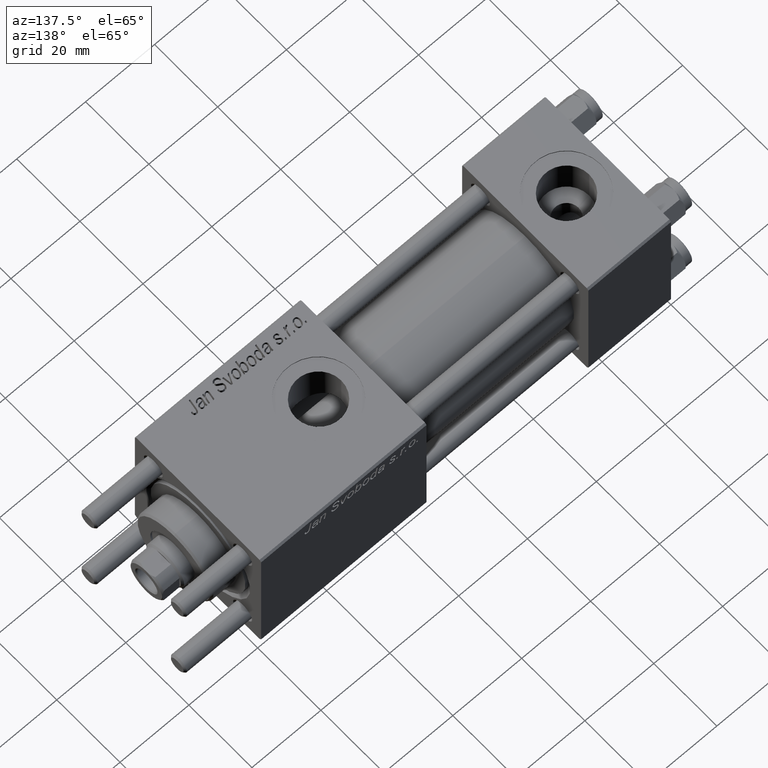
[diagram: clean part render]
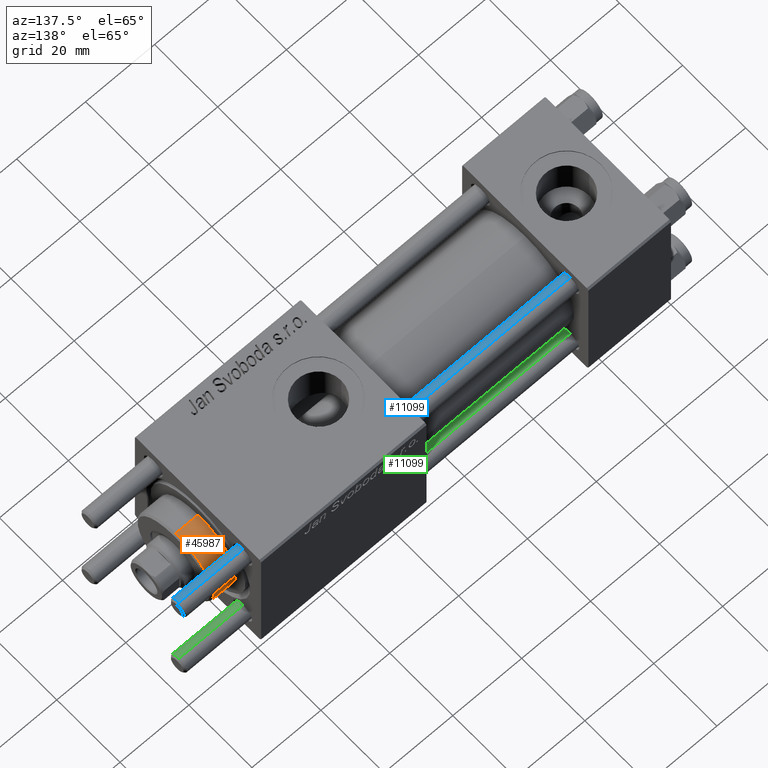
[diagram: same view with three faces highlighted in distinct colors, each labeled with its STEP entity id]
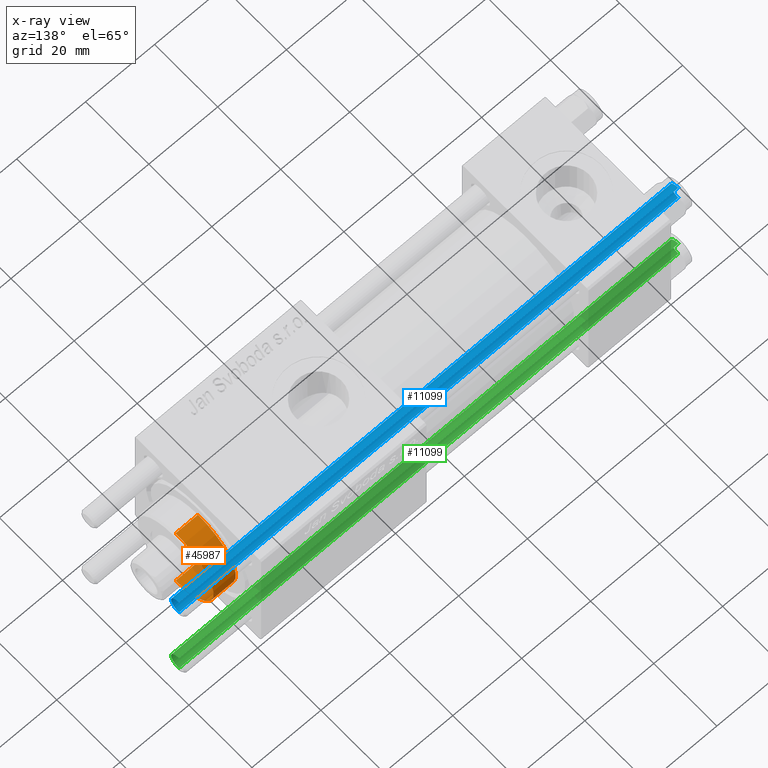
[diagram: x-ray of the same camera — body ghosted, the three highlighted faces saturated]
A machine part, auxiliary view with three faces highlighted in distinct colors.
The next image is the same camera in x-ray (body ghosted, the three faces saturated) — at least one of them is partly hidden behind the body in this view.
Their STEP definitions:

[orange] entity #45987 — the highlighted cylindrical surface (partial cylindrical patch) has radius 12 mm, axis along (-1, -0, 0).
#172 = AXIS2_PLACEMENT_3D ( 'NONE', #12920, #44151, #26120 ) ;
#841 = AXIS2_PLACEMENT_3D ( 'NONE', #52171, #43544, #12320 ) ;
#5217 = CARTESIAN_POINT ( 'NONE',  ( -12.00000000000000178, 0.000000000000000000, 35.70000000000000284 ) ) ;
#6647 = DIRECTION ( 'NONE',  ( 0.000000000000000000, 0.000000000000000000, 1.000000000000000000 ) ) ;
#7401 = VECTOR ( 'NONE', #49105, 1000.000000000000000 ) ;
#7747 = CARTESIAN_POINT ( 'NONE',  ( 12.00000000000000178, 1.469576158976824144E-15, 35.19999999999999574 ) ) ;
#8285 = CYLINDRICAL_SURFACE ( 'NONE', #841, 12.00000000000000178 ) ;
#8944 = VERTEX_POINT ( 'NONE', #31532 ) ;
#11690 = CARTESIAN_POINT ( 'NONE',  ( 12.00000000000000178, 1.469576158976824144E-15, 35.70000000000000284 ) ) ;
#11798 = EDGE_CURVE ( 'NONE', #8944, #29513, #23094, .T. ) ;
#12320 = DIRECTION ( 'NONE',  ( -1.000000000000000000, 0.000000000000000000, 0.000000000000000000 ) ) ;
#12686 = VERTEX_POINT ( 'NONE', #47923 ) ;
#12920 = CARTESIAN_POINT ( 'NONE',  ( 0.000000000000000000, 0.000000000000000000, 35.19999999999999574 ) ) ;
#13403 = EDGE_LOOP ( 'NONE', ( #41118, #41967, #32680, #27505 ) ) ;
#21489 = FACE_OUTER_BOUND ( 'NONE', #13403, .T. ) ;
#23094 = CIRCLE ( 'NONE', #172, 12.00000000000000178 ) ;
#26120 = DIRECTION ( 'NONE',  ( 1.000000000000000000, 0.000000000000000000, 0.000000000000000000 ) ) ;
#27445 = CIRCLE ( 'NONE', #46678, 12.00000000000000178 ) ;
#27505 = ORIENTED_EDGE ( 'NONE', *, *, #50852, .F. ) ;
#28922 = LINE ( 'NONE', #11690, #47357 ) ;
#29209 = DIRECTION ( 'NONE',  ( -0.000000000000000000, -0.000000000000000000, -1.000000000000000000 ) ) ;
#29329 = DIRECTION ( 'NONE',  ( 1.000000000000000000, 0.000000000000000000, 0.000000000000000000 ) ) ;
#29513 = VERTEX_POINT ( 'NONE', #7747 ) ;
#31532 = CARTESIAN_POINT ( 'NONE',  ( -12.00000000000000178, 0.000000000000000000, 35.19999999999999574 ) ) ;
#32342 = EDGE_CURVE ( 'NONE', #29513, #12686, #28922, .T. ) ;
#32680 = ORIENTED_EDGE ( 'NONE', *, *, #46447, .T. ) ;
#34200 = CARTESIAN_POINT ( 'NONE',  ( 0.000000000000000000, 0.000000000000000000, 28.69999999999999929 ) ) ;
#40119 = VERTEX_POINT ( 'NONE', #48961 ) ;
#41118 = ORIENTED_EDGE ( 'NONE', *, *, #11798, .T. ) ;
#41967 = ORIENTED_EDGE ( 'NONE', *, *, #32342, .T. ) ;
#43544 = DIRECTION ( 'NONE',  ( -0.000000000000000000, -0.000000000000000000, -1.000000000000000000 ) ) ;
#44151 = DIRECTION ( 'NONE',  ( 0.000000000000000000, 0.000000000000000000, -1.000000000000000000 ) ) ;
#45987 = ADVANCED_FACE ( 'NONE', ( #21489 ), #8285, .T. ) ;
#46447 = EDGE_CURVE ( 'NONE', #12686, #40119, #27445, .T. ) ;
#46678 = AXIS2_PLACEMENT_3D ( 'NONE', #34200, #6647, #29329 ) ;
#47357 = VECTOR ( 'NONE', #29209, 1000.000000000000000 ) ;
#47923 = CARTESIAN_POINT ( 'NONE',  ( 12.00000000000000178, 1.469576158976824144E-15, 28.69999999999999929 ) ) ;
#48541 = LINE ( 'NONE', #5217, #7401 ) ;
#48961 = CARTESIAN_POINT ( 'NONE',  ( -12.00000000000000178, 0.000000000000000000, 28.69999999999999929 ) ) ;
#49105 = DIRECTION ( 'NONE',  ( -0.000000000000000000, -0.000000000000000000, -1.000000000000000000 ) ) ;
#50852 = EDGE_CURVE ( 'NONE', #8944, #40119, #48541, .T. ) ;
#52171 = CARTESIAN_POINT ( 'NONE',  ( 0.000000000000000000, 0.000000000000000000, 35.70000000000000284 ) ) ;

[blue] entity #11099 — the highlighted cylindrical surface (edge-blend (fillet) strip) has radius 2.5 mm, axis along (1, -0, -0).
#1461 = EDGE_LOOP ( 'NONE', ( #35392, #48515, #48185, #45207 ) ) ;
#1906 = VECTOR ( 'NONE', #47004, 1000.000000000000000 ) ;
#3078 = LINE ( 'NONE', #20594, #54666 ) ;
#3536 = CARTESIAN_POINT ( 'NONE',  ( 2.500000000000000000, 3.061616997868383141E-16, 0.5000000000000559552 ) ) ;
#4812 = AXIS2_PLACEMENT_3D ( 'NONE', #50503, #55370, #29286 ) ;
#7393 = CIRCLE ( 'NONE', #41246, 2.500000000000000000 ) ;
#7404 = CARTESIAN_POINT ( 'NONE',  ( 2.500000000000000000, 3.061616997868383141E-16, 146.0000000000000000 ) ) ;
#8252 = FACE_OUTER_BOUND ( 'NONE', #1461, .T. ) ;
#9406 = CIRCLE ( 'NONE', #4812, 2.500000000000000000 ) ;
#9783 = DIRECTION ( 'NONE',  ( -0.000000000000000000, -0.000000000000000000, -1.000000000000000000 ) ) ;
#11099 = ADVANCED_FACE ( 'NONE', ( #8252 ), #25769, .T. ) ;
#17051 = EDGE_CURVE ( 'NONE', #43855, #41806, #9406, .T. ) ;
#17411 = DIRECTION ( 'NONE',  ( -1.000000000000000000, 0.000000000000000000, 0.000000000000000000 ) ) ;
#20594 = CARTESIAN_POINT ( 'NONE',  ( -2.500000000000000000, 0.000000000000000000, 146.0000000000000000 ) ) ;
#21490 = CARTESIAN_POINT ( 'NONE',  ( 2.500000000000000000, 3.061616997868383141E-16, 145.5000000000000284 ) ) ;
#24670 = DIRECTION ( 'NONE',  ( 1.000000000000000000, 0.000000000000000000, 0.000000000000000000 ) ) ;
#25769 = CYLINDRICAL_SURFACE ( 'NONE', #43273, 2.500000000000000000 ) ;
#26314 = DIRECTION ( 'NONE',  ( -0.000000000000000000, -0.000000000000000000, -1.000000000000000000 ) ) ;
#29272 = CARTESIAN_POINT ( 'NONE',  ( 0.000000000000000000, 0.000000000000000000, 0.5000000000000559552 ) ) ;
#29286 = DIRECTION ( 'NONE',  ( 1.000000000000000000, 0.000000000000000000, 0.000000000000000000 ) ) ;
#32365 = EDGE_CURVE ( 'NONE', #41806, #54669, #3078, .T. ) ;
#35392 = ORIENTED_EDGE ( 'NONE', *, *, #50537, .F. ) ;
#36059 = VERTEX_POINT ( 'NONE', #3536 ) ;
#37864 = CARTESIAN_POINT ( 'NONE',  ( -2.500000000000000000, 0.000000000000000000, 145.5000000000000284 ) ) ;
#41246 = AXIS2_PLACEMENT_3D ( 'NONE', #29272, #55645, #24670 ) ;
#41806 = VERTEX_POINT ( 'NONE', #37864 ) ;
#42965 = LINE ( 'NONE', #7404, #1906 ) ;
#43273 = AXIS2_PLACEMENT_3D ( 'NONE', #51864, #26314, #17411 ) ;
#43855 = VERTEX_POINT ( 'NONE', #21490 ) ;
#45207 = ORIENTED_EDGE ( 'NONE', *, *, #53802, .T. ) ;
#47004 = DIRECTION ( 'NONE',  ( -0.000000000000000000, -0.000000000000000000, -1.000000000000000000 ) ) ;
#47707 = CARTESIAN_POINT ( 'NONE',  ( -2.500000000000000000, 0.000000000000000000, 0.5000000000000559552 ) ) ;
#48185 = ORIENTED_EDGE ( 'NONE', *, *, #32365, .T. ) ;
#48515 = ORIENTED_EDGE ( 'NONE', *, *, #17051, .T. ) ;
#50503 = CARTESIAN_POINT ( 'NONE',  ( 0.000000000000000000, 0.000000000000000000, 145.5000000000000284 ) ) ;
#50537 = EDGE_CURVE ( 'NONE', #43855, #36059, #42965, .T. ) ;
#51864 = CARTESIAN_POINT ( 'NONE',  ( 0.000000000000000000, 0.000000000000000000, 146.0000000000000000 ) ) ;
#53802 = EDGE_CURVE ( 'NONE', #54669, #36059, #7393, .T. ) ;
#54666 = VECTOR ( 'NONE', #9783, 1000.000000000000000 ) ;
#54669 = VERTEX_POINT ( 'NONE', #47707 ) ;
#55370 = DIRECTION ( 'NONE',  ( 0.000000000000000000, 0.000000000000000000, -1.000000000000000000 ) ) ;
#55645 = DIRECTION ( 'NONE',  ( -0.000000000000000000, -0.000000000000000000, 1.000000000000000000 ) ) ;

[green] entity #11099 — the highlighted cylindrical surface (edge-blend (fillet) strip) has radius 2.5 mm, axis along (-1, -0, 0).
#1461 = EDGE_LOOP ( 'NONE', ( #35392, #48515, #48185, #45207 ) ) ;
#1906 = VECTOR ( 'NONE', #47004, 1000.000000000000000 ) ;
#3078 = LINE ( 'NONE', #20594, #54666 ) ;
#3536 = CARTESIAN_POINT ( 'NONE',  ( 2.500000000000000000, 3.061616997868383141E-16, 0.5000000000000559552 ) ) ;
#4812 = AXIS2_PLACEMENT_3D ( 'NONE', #50503, #55370, #29286 ) ;
#7393 = CIRCLE ( 'NONE', #41246, 2.500000000000000000 ) ;
#7404 = CARTESIAN_POINT ( 'NONE',  ( 2.500000000000000000, 3.061616997868383141E-16, 146.0000000000000000 ) ) ;
#8252 = FACE_OUTER_BOUND ( 'NONE', #1461, .T. ) ;
#9406 = CIRCLE ( 'NONE', #4812, 2.500000000000000000 ) ;
#9783 = DIRECTION ( 'NONE',  ( -0.000000000000000000, -0.000000000000000000, -1.000000000000000000 ) ) ;
#11099 = ADVANCED_FACE ( 'NONE', ( #8252 ), #25769, .T. ) ;
#17051 = EDGE_CURVE ( 'NONE', #43855, #41806, #9406, .T. ) ;
#17411 = DIRECTION ( 'NONE',  ( -1.000000000000000000, 0.000000000000000000, 0.000000000000000000 ) ) ;
#20594 = CARTESIAN_POINT ( 'NONE',  ( -2.500000000000000000, 0.000000000000000000, 146.0000000000000000 ) ) ;
#21490 = CARTESIAN_POINT ( 'NONE',  ( 2.500000000000000000, 3.061616997868383141E-16, 145.5000000000000284 ) ) ;
#24670 = DIRECTION ( 'NONE',  ( 1.000000000000000000, 0.000000000000000000, 0.000000000000000000 ) ) ;
#25769 = CYLINDRICAL_SURFACE ( 'NONE', #43273, 2.500000000000000000 ) ;
#26314 = DIRECTION ( 'NONE',  ( -0.000000000000000000, -0.000000000000000000, -1.000000000000000000 ) ) ;
#29272 = CARTESIAN_POINT ( 'NONE',  ( 0.000000000000000000, 0.000000000000000000, 0.5000000000000559552 ) ) ;
#29286 = DIRECTION ( 'NONE',  ( 1.000000000000000000, 0.000000000000000000, 0.000000000000000000 ) ) ;
#32365 = EDGE_CURVE ( 'NONE', #41806, #54669, #3078, .T. ) ;
#35392 = ORIENTED_EDGE ( 'NONE', *, *, #50537, .F. ) ;
#36059 = VERTEX_POINT ( 'NONE', #3536 ) ;
#37864 = CARTESIAN_POINT ( 'NONE',  ( -2.500000000000000000, 0.000000000000000000, 145.5000000000000284 ) ) ;
#41246 = AXIS2_PLACEMENT_3D ( 'NONE', #29272, #55645, #24670 ) ;
#41806 = VERTEX_POINT ( 'NONE', #37864 ) ;
#42965 = LINE ( 'NONE', #7404, #1906 ) ;
#43273 = AXIS2_PLACEMENT_3D ( 'NONE', #51864, #26314, #17411 ) ;
#43855 = VERTEX_POINT ( 'NONE', #21490 ) ;
#45207 = ORIENTED_EDGE ( 'NONE', *, *, #53802, .T. ) ;
#47004 = DIRECTION ( 'NONE',  ( -0.000000000000000000, -0.000000000000000000, -1.000000000000000000 ) ) ;
#47707 = CARTESIAN_POINT ( 'NONE',  ( -2.500000000000000000, 0.000000000000000000, 0.5000000000000559552 ) ) ;
#48185 = ORIENTED_EDGE ( 'NONE', *, *, #32365, .T. ) ;
#48515 = ORIENTED_EDGE ( 'NONE', *, *, #17051, .T. ) ;
#50503 = CARTESIAN_POINT ( 'NONE',  ( 0.000000000000000000, 0.000000000000000000, 145.5000000000000284 ) ) ;
#50537 = EDGE_CURVE ( 'NONE', #43855, #36059, #42965, .T. ) ;
#51864 = CARTESIAN_POINT ( 'NONE',  ( 0.000000000000000000, 0.000000000000000000, 146.0000000000000000 ) ) ;
#53802 = EDGE_CURVE ( 'NONE', #54669, #36059, #7393, .T. ) ;
#54666 = VECTOR ( 'NONE', #9783, 1000.000000000000000 ) ;
#54669 = VERTEX_POINT ( 'NONE', #47707 ) ;
#55370 = DIRECTION ( 'NONE',  ( 0.000000000000000000, 0.000000000000000000, -1.000000000000000000 ) ) ;
#55645 = DIRECTION ( 'NONE',  ( -0.000000000000000000, -0.000000000000000000, 1.000000000000000000 ) ) ;